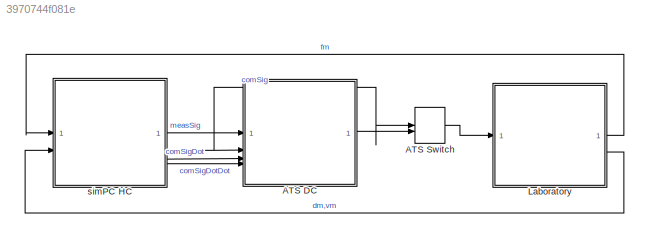
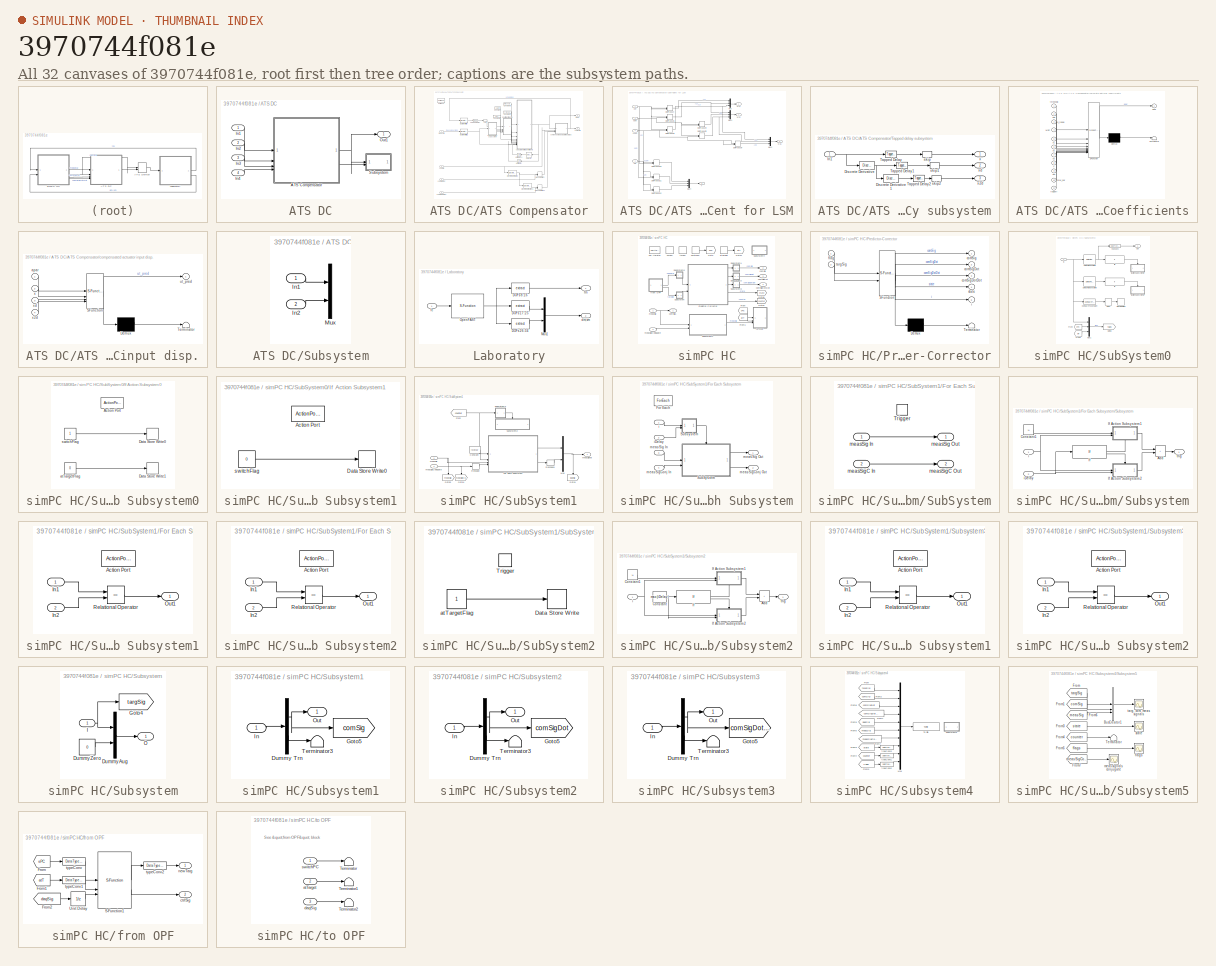
[diagram: thumbnail index - all 32 canvases of the model, root first then tree order]
MODEL slx_3970744f081e
KIND model
CONFIG AbsTol = auto
CONFIG EnableMultiTasking = off
CONFIG FixedStep = controlPeriod
CONFIG InitFcn = clear('all');\ninitializeSimulation;
CONFIG MaxStep = auto
CONFIG MinStep = auto
CONFIG PreLoadFcn = initializeSimulation;
CONFIG RelTol = 1e-3
CONFIG SampleTimeConstraint = Unconstrained
CONFIG SolverName = FixedStepDiscrete
CONFIG StartTime = 0.0
CONFIG StopTime = inf
BLOCK [SubSystem] ATS DC
BLOCK [SubSystem] ATS DC/ATS Compensator
BLOCK [DiscreteTransferFcn] ATS DC/ATS Compensator/Butterworth filter
  Denominator = Zden
  InputPortMap = u0
  Numerator = Znum
BLOCK [DiscreteTransferFcn] ATS DC/ATS Compensator/Butterworth filter1
  Denominator = Zden
  InputPortMap = u0
  Numerator = Znum
BLOCK [SubSystem] ATS DC/ATS Compensator/Coefficient for LSM
BLOCK [DotProduct] ATS DC/ATS Compensator/Coefficient for LSM/Dot Product
  OutDataTypeStr = Inherit: Inherit via internal rule
BLOCK [DotProduct] ATS DC/ATS Compensator/Coefficient for LSM/Dot Product1
  OutDataTypeStr = Inherit: Inherit via internal rule
BLOCK [DotProduct] ATS DC/ATS Compensator/Coefficient for LSM/Dot Product10
  OutDataTypeStr = Inherit: Inherit via internal rule
BLOCK [DotProduct] ATS DC/ATS Compensator/Coefficient for LSM/Dot Product11
  OutDataTypeStr = Inherit: Inherit via internal rule
BLOCK [DotProduct] ATS DC/ATS Compensator/Coefficient for LSM/Dot Product12
  OutDataTypeStr = Inherit: Inherit via internal rule
BLOCK [DotProduct] ATS DC/ATS Compensator/Coefficient for LSM/Dot Product2
  OutDataTypeStr = Inherit: Inherit via internal rule
BLOCK [DotProduct] ATS DC/ATS Compensator/Coefficient for LSM/Dot Product4
  OutDataTypeStr = Inherit: Inherit via internal rule
BLOCK [DotProduct] ATS DC/ATS Compensator/Coefficient for LSM/Dot Product5
  OutDataTypeStr = Inherit: Inherit via internal rule
BLOCK [DotProduct] ATS DC/ATS Compensator/Coefficient for LSM/Dot Product7
  OutDataTypeStr = Inherit: Inherit via internal rule
BLOCK [Mux] ATS DC/ATS Compensator/Coefficient for LSM/Mux
  DisplayOption = bar
  Inputs = 3
BLOCK [Mux] ATS DC/ATS Compensator/Coefficient for LSM/Mux1
  DisplayOption = bar
  Inputs = 3
BLOCK [Mux] ATS DC/ATS Compensator/Coefficient for LSM/Mux2
  DisplayOption = bar
  Inputs = 3
BLOCK [Mux] ATS DC/ATS Compensator/Coefficient for LSM/Mux4
  DisplayOption = bar
  Inputs = 3
BLOCK [Outport] ATS DC/ATS Compensator/Coefficient for LSM/X(1,:)
  VectorParamsAs1DForOutWhenUnconnected = off
BLOCK [Outport] ATS DC/ATS Compensator/Coefficient for LSM/X(2,:)
  Port = 2
  VectorParamsAs1DForOutWhenUnconnected = off
BLOCK [Outport] ATS DC/ATS Compensator/Coefficient for LSM/X(3,:)
  Port = 3
  VectorParamsAs1DForOutWhenUnconnected = off
BLOCK [Outport] ATS DC/ATS Compensator/Coefficient for LSM/Y
  Port = 4
  VectorParamsAs1DForOutWhenUnconnected = off
BLOCK [Inport] ATS DC/ATS Compensator/Coefficient for LSM/um
BLOCK [Inport] ATS DC/ATS Compensator/Coefficient for LSM/x2dm
  Port = 4
BLOCK [Inport] ATS DC/ATS Compensator/Coefficient for LSM/xdm
  Port = 3
BLOCK [Inport] ATS DC/ATS Compensator/Coefficient for LSM/xm
  Port = 2
BLOCK [Constant] ATS DC/ATS Compensator/Constant1
  Value = param
BLOCK [Constant] ATS DC/ATS Compensator/Constant2
  Value = P_range
BLOCK [Constant] ATS DC/ATS Compensator/Constant3
  Value = threshold
BLOCK [Constant] ATS DC/ATS Compensator/Constant4
  Value = MRC
BLOCK [Reference] ATS DC/ATS Compensator/Discrete Derivative  REF=simulink/Discrete/Discrete Derivative
  SourceBlock = simulink/Discrete/Discrete Derivative
  SourceType = Discrete Derivative
BLOCK [Reference] ATS DC/ATS Compensator/Discrete Derivative1  REF=simulink/Discrete/Discrete Derivative
  SourceBlock = simulink/Discrete/Discrete Derivative
  SourceType = Discrete Derivative
BLOCK [ForEach] ATS DC/ATS Compensator/For Each
  DisableCoverage = on
  IterateSubsysMaskParameter = on,on
  SubsysMaskParameterIterationDimension = 2,2
BLOCK [ManualSwitch] ATS DC/ATS Compensator/Manual Switch
  CurrentSetting = 0
BLOCK [ManualSwitch] ATS DC/ATS Compensator/Manual Switch1
  CurrentSetting = 0
BLOCK [Selector] ATS DC/ATS Compensator/Selector
  IndexOptions = Index vector (dialog)
  Indices = 4
  InputPortWidth = 4
  OutputSizes = 1
BLOCK [Reference] ATS DC/ATS Compensator/Tapped Delay  REF=simulink/Discrete/Tapped Delay
  SourceBlock = simulink/Discrete/Tapped Delay
  SourceType = Tapped Delay Line
BLOCK [SubSystem] ATS DC/ATS Compensator/Tapped delay subsystem
BLOCK [Reference] ATS DC/ATS Compensator/Tapped delay subsystem/Discrete Derivative  REF=simulink/Discrete/Discrete Derivative
  SourceBlock = simulink/Discrete/Discrete Derivative
  SourceType = Discrete Derivative
BLOCK [Reference] ATS DC/ATS Compensator/Tapped delay subsystem/Discrete Derivative1  REF=simulink/Discrete/Discrete Derivative
  SourceBlock = simulink/Discrete/Discrete Derivative
  SourceType = Discrete Derivative
BLOCK [Inport] ATS DC/ATS Compensator/Tapped delay subsystem/In1
BLOCK [Reference] ATS DC/ATS Compensator/Tapped delay subsystem/Tapped Delay  REF=simulink/Discrete/Tapped Delay
  SourceBlock = simulink/Discrete/Tapped Delay
  SourceType = Tapped Delay Line
BLOCK [Reference] ATS DC/ATS Compensator/Tapped delay subsystem/Tapped Delay1  REF=simulink/Discrete/Tapped Delay
  SourceBlock = simulink/Discrete/Tapped Delay
  SourceType = Tapped Delay Line
BLOCK [Reference] ATS DC/ATS Compensator/Tapped delay subsystem/Tapped Delay2  REF=simulink/Discrete/Tapped Delay
  SourceBlock = simulink/Discrete/Tapped Delay
  SourceType = Tapped Delay Line
BLOCK [Selector] ATS DC/ATS Compensator/Tapped delay subsystem/skip
  IndexOptions = Index vector (dialog)
  Indices = [1:SN:Nl]
  InputPortWidth = Nl
  OutputSizes = 1
BLOCK [Selector] ATS DC/ATS Compensator/Tapped delay subsystem/skip1
  IndexOptions = Index vector (dialog)
  Indices = [1:SN:Nl]
  InputPortWidth = Nl
  OutputSizes = 1
BLOCK [Selector] ATS DC/ATS Compensator/Tapped delay subsystem/skip2
  IndexOptions = Index vector (dialog)
  Indices = [1:SN:Nl]
  InputPortWidth = Nl
  OutputSizes = 1
BLOCK [Outport] ATS DC/ATS Compensator/Tapped delay subsystem/x
  VectorParamsAs1DForOutWhenUnconnected = off
BLOCK [Outport] ATS DC/ATS Compensator/Tapped delay subsystem/x2d
  Port = 3
  VectorParamsAs1DForOutWhenUnconnected = off
BLOCK [Outport] ATS DC/ATS Compensator/Tapped delay subsystem/xd
  Port = 2
  VectorParamsAs1DForOutWhenUnconnected = off
BLOCK [UnitDelay] ATS DC/ATS Compensator/Unit Delay
  HasFrameUpgradeWarning = on
  SampleTime = -1
BLOCK [UnitDelay] ATS DC/ATS Compensator/Unit Delay1
  HasFrameUpgradeWarning = on
  SampleTime = -1
BLOCK [Outport] ATS DC/ATS Compensator/apar
  ConcatenationDimension = 1
  Port = 2
  VectorParamsAs1DForOutWhenUnconnected = off
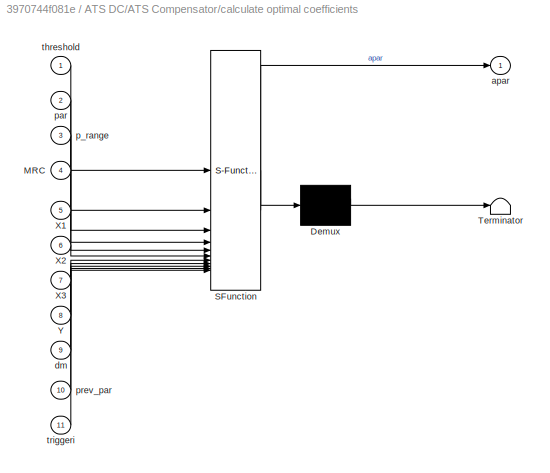
BLOCK [SubSystem] ATS DC/ATS Compensator/calculate optimal coefficients
  ErrorFcn = Stateflow.Translate.translate
  PermitHierarchicalResolution = ExplicitOnly
  SFBlockType = MATLAB Function
  TreatAsAtomicUnit = on
BLOCK [Demux] ATS DC/ATS Compensator/calculate optimal coefficients/ Demux 
  Outputs = 1
BLOCK [S-Function] ATS DC/ATS Compensator/calculate optimal coefficients/ SFunction 
  EnableBusSupport = off
  FunctionName = sf_sfun
  PortCounts = [11 2]
  SFcnIsStateOwnerBlock = off
  SFunctionDeploymentMode = off
  Tag = Stateflow S-Function 14
BLOCK [Terminator] ATS DC/ATS Compensator/calculate optimal coefficients/ Terminator 
BLOCK [Inport] ATS DC/ATS Compensator/calculate optimal coefficients/MRC
  Port = 4
BLOCK [Inport] ATS DC/ATS Compensator/calculate optimal coefficients/X1
  Port = 5
BLOCK [Inport] ATS DC/ATS Compensator/calculate optimal coefficients/X2
  Port = 6
BLOCK [Inport] ATS DC/ATS Compensator/calculate optimal coefficients/X3
  Port = 7
BLOCK [Inport] ATS DC/ATS Compensator/calculate optimal coefficients/Y
  Port = 8
BLOCK [Outport] ATS DC/ATS Compensator/calculate optimal coefficients/apar
  VectorParamsAs1DForOutWhenUnconnected = off
BLOCK [Inport] ATS DC/ATS Compensator/calculate optimal coefficients/dm
  Port = 9
BLOCK [Inport] ATS DC/ATS Compensator/calculate optimal coefficients/p_range
  Port = 3
BLOCK [Inport] ATS DC/ATS Compensator/calculate optimal coefficients/par
  Port = 2
BLOCK [Inport] ATS DC/ATS Compensator/calculate optimal coefficients/prev_par
  Port = 10
BLOCK [Inport] ATS DC/ATS Compensator/calculate optimal coefficients/threshold
BLOCK [Inport] ATS DC/ATS Compensator/calculate optimal coefficients/triggeri
  Port = 11
BLOCK [Inport] ATS DC/ATS Compensator/comSig
  Partition = on
  PartitionDimension = 1
  PartitionOffset = 0
  PartitionWidth = 1
  Port = 2
BLOCK [Inport] ATS DC/ATS Compensator/comSigDot
  Partition = on
  PartitionDimension = 1
  PartitionOffset = 0
  PartitionWidth = 1
  Port = 3
BLOCK [Inport] ATS DC/ATS Compensator/comSigDotDot
  Partition = on
  PartitionDimension = 1
  PartitionOffset = 0
  PartitionWidth = 1
  Port = 4
BLOCK [Outport] ATS DC/ATS Compensator/compSig
  ConcatenationDimension = 1
  VectorParamsAs1DForOutWhenUnconnected = off
BLOCK [SubSystem] ATS DC/ATS Compensator/compensated actuator input disp.
  ErrorFcn = Stateflow.Translate.translate
  PermitHierarchicalResolution = ExplicitOnly
  SFBlockType = MATLAB Function
  TreatAsAtomicUnit = on
BLOCK [Demux] ATS DC/ATS Compensator/compensated actuator input disp./ Demux 
  Outputs = 1
BLOCK [S-Function] ATS DC/ATS Compensator/compensated actuator input disp./ SFunction 
  EnableBusSupport = off
  FunctionName = sf_sfun
  PortCounts = [4 2]
  SFcnIsStateOwnerBlock = off
  SFunctionDeploymentMode = off
  Tag = Stateflow S-Function 15
BLOCK [Terminator] ATS DC/ATS Compensator/compensated actuator input disp./ Terminator 
BLOCK [Inport] ATS DC/ATS Compensator/compensated actuator input disp./apar
BLOCK [Outport] ATS DC/ATS Compensator/compensated actuator input disp./ut_pred
  VectorParamsAs1DForOutWhenUnconnected = off
BLOCK [Inport] ATS DC/ATS Compensator/compensated actuator input disp./x
  Port = 2
BLOCK [Inport] ATS DC/ATS Compensator/compensated actuator input disp./x2d
  Port = 4
BLOCK [Inport] ATS DC/ATS Compensator/compensated actuator input disp./xd
  Port = 3
BLOCK [Inport] ATS DC/ATS Compensator/measSig
  Partition = on
  PartitionDimension = 1
  PartitionOffset = 0
  PartitionWidth = 1
BLOCK [Selector] ATS DC/ATS Compensator/skip
  IndexOptions = Index vector (dialog)
  Indices = [1:SN:Nl]
  InputPortWidth = Nl
  OutputSizes = 1
BLOCK [Inport] ATS DC/In1
BLOCK [Inport] ATS DC/In2
  Port = 2
BLOCK [Inport] ATS DC/In3
  Port = 3
BLOCK [Inport] ATS DC/In4
  Port = 4
BLOCK [Outport] ATS DC/Out1
  VectorParamsAs1DForOutWhenUnconnected = off
BLOCK [SubSystem] ATS DC/Subsystem
BLOCK [Inport] ATS DC/Subsystem/In1
BLOCK [Inport] ATS DC/Subsystem/In2
  Port = 2
BLOCK [Mux] ATS DC/Subsystem/Mux
  DisplayOption = bar
  Inputs = 2
BLOCK [ManualSwitch] ATS Switch
BLOCK [SubSystem] Laboratory
BLOCK [Reference] Laboratory/DOFs 17:25  REF=HybridSimLib/Signal
Routing/extract
  SourceBlock = HybridSimLib/Signal\nRouting/extract
  SourceProductName = Hybrid Simulation
  SourceType = from Actuators
BLOCK [Reference] Laboratory/DOFs 26:34  REF=HybridSimLib/Signal
Routing/extract
  SourceBlock = HybridSimLib/Signal\nRouting/extract
  SourceProductName = Hybrid Simulation
  SourceType = from Actuators
BLOCK [Reference] Laboratory/DOFs 8:16  REF=HybridSimLib/Signal
Routing/extract
  SourceBlock = HybridSimLib/Signal\nRouting/extract
  SourceProductName = Hybrid Simulation
  SourceType = from Actuators
BLOCK [Mux] Laboratory/Mux1
  DisplayOption = bar
  Inputs = 2
BLOCK [S-Function] Laboratory/OpenFAST
  EnableBusSupport = off
  FunctionName = FAST_SFunc
  Parameters = FAST_InputFileName, TMax, 0
  SFcnIsStateOwnerBlock = off
  SFunctionDeploymentMode = off
BLOCK [Outport] Laboratory/dm,vm
  Port = 2
BLOCK [Inport] Laboratory/fc
BLOCK [Outport] Laboratory/fm
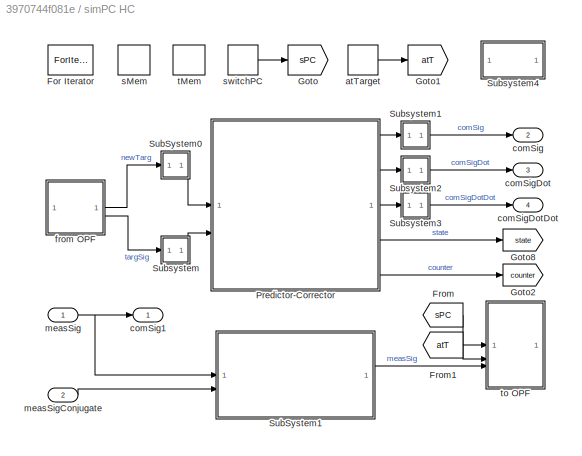
BLOCK [SubSystem] simPC HC
BLOCK [ForIterator] simPC HC/For Iterator
  IterationLimit = upFact
  ShowIterationPort = off
BLOCK [From] simPC HC/From
  GotoTag = sPC
  IconDisplay = Signal name
  TagVisibility = global
BLOCK [From] simPC HC/From1
  GotoTag = atT
  IconDisplay = Signal name
  TagVisibility = global
BLOCK [Goto] simPC HC/Goto
  GotoTag = sPC
  TagVisibility = global
BLOCK [Goto] simPC HC/Goto1
  GotoTag = atT
  TagVisibility = global
BLOCK [Goto] simPC HC/Goto2
  GotoTag = counter
  TagVisibility = global
BLOCK [Goto] simPC HC/Goto8
  GotoTag = state
  TagVisibility = global
BLOCK [SubSystem] simPC HC/Predictor-Corrector
  ErrorFcn = Stateflow.Translate.translate
  PermitHierarchicalResolution = ExplicitOnly
  SFBlockType = Chart
  TreatAsAtomicUnit = on
BLOCK [Demux] simPC HC/Predictor-Corrector/ Demux 
  Outputs = 1
BLOCK [S-Function] simPC HC/Predictor-Corrector/ SFunction 
  EnableBusSupport = off
  FunctionName = sf_sfun
  Parameters = N,dtCon,dtInt,dtSim,nDOF
  PortCounts = [2 6]
  SFcnIsStateOwnerBlock = off
  SFunctionDeploymentMode = off
  Tag = Stateflow S-Function 5
BLOCK [Terminator] simPC HC/Predictor-Corrector/ Terminator 
BLOCK [Outport] simPC HC/Predictor-Corrector/comSig
  VectorParamsAs1DForOutWhenUnconnected = off
BLOCK [Outport] simPC HC/Predictor-Corrector/comSigDot
  Port = 2
  VectorParamsAs1DForOutWhenUnconnected = off
BLOCK [Outport] simPC HC/Predictor-Corrector/comSigDotDot
  Port = 3
  VectorParamsAs1DForOutWhenUnconnected = off
BLOCK [Inport] simPC HC/Predictor-Corrector/flag
BLOCK [Outport] simPC HC/Predictor-Corrector/i
  Port = 5
  VectorParamsAs1DForOutWhenUnconnected = off
BLOCK [Outport] simPC HC/Predictor-Corrector/state
  Port = 4
  VectorParamsAs1DForOutWhenUnconnected = off
BLOCK [Inport] simPC HC/Predictor-Corrector/targSig
  Port = 2
BLOCK [SubSystem] simPC HC/SubSystem0
BLOCK [Reference] simPC HC/SubSystem0/Compare To Constant  REF=simulink/Logic and Bit
Operations/Compare
To Constant
  SourceBlock = simulink/Logic and Bit\nOperations/Compare\nTo Constant
  SourceType = Compare To Constant
BLOCK [Delay] simPC HC/SubSystem0/Delay
  DelayLength = 10
  InputPortMap = u0
BLOCK [Reference] simPC HC/SubSystem0/Detect Fall Nonpositive  REF=simulink/Logic and Bit
Operations/Detect Fall
Nonpositive
  SourceBlock = simulink/Logic and Bit\nOperations/Detect Fall\nNonpositive
  SourceType = Detect Fall Nonpositive
BLOCK [Reference] simPC HC/SubSystem0/Detect Rise Positive  REF=simulink/Logic and Bit
Operations/Detect Rise
Positive
  SourceBlock = simulink/Logic and Bit\nOperations/Detect Rise\nPositive
  SourceType = Detect Rise Positive
BLOCK [From] simPC HC/SubSystem0/From
  GotoTag = sPC
  IconDisplay = Signal name
  TagVisibility = global
BLOCK [From] simPC HC/SubSystem0/From1
  GotoTag = atT
  IconDisplay = Signal name
  TagVisibility = global
BLOCK [Goto] simPC HC/SubSystem0/Goto8
  GotoTag = flags
  TagVisibility = global
BLOCK [SubSystem] simPC HC/SubSystem0/If Action Subsystem0
  TreatAsAtomicUnit = on
BLOCK [ActionPort] simPC HC/SubSystem0/If Action Subsystem0/Action Port
  ActionPortLabel = if(u1 == 1)
  PropagateVarSize = During execution
BLOCK [DataStoreWrite] simPC HC/SubSystem0/If Action Subsystem0/Data Store Write0
  DataStoreName = sFlag
  IndexOptions = Index vector (dialog)
  Indices = 1
  OutputSizes = 1
BLOCK [DataStoreWrite] simPC HC/SubSystem0/If Action Subsystem0/Data Store Write1
  DataStoreName = tFlag
  IndexOptions = Index vector (dialog)
  Indices = 1
  OutputSizes = 1
BLOCK [Constant] simPC HC/SubSystem0/If Action Subsystem0/atTargetFlag
  OutDataTypeStr = int32
  SampleTime = -1
  Value = 0
BLOCK [Constant] simPC HC/SubSystem0/If Action Subsystem0/switchFlag
  OutDataTypeStr = int32
  SampleTime = -1
BLOCK [SubSystem] simPC HC/SubSystem0/If Action Subsystem1
  TreatAsAtomicUnit = on
BLOCK [ActionPort] simPC HC/SubSystem0/If Action Subsystem1/Action Port
  ActionPortLabel = if(u1 == 1)
  PropagateVarSize = During execution
BLOCK [DataStoreWrite] simPC HC/SubSystem0/If Action Subsystem1/Data Store Write0
  DataStoreName = sFlag
  IndexOptions = Index vector (dialog)
  Indices = 1
  OutputSizes = 1
BLOCK [Constant] simPC HC/SubSystem0/If Action Subsystem1/switchFlag
  OutDataTypeStr = int32
  SampleTime = -1
  Value = 0
BLOCK [If] simPC HC/SubSystem0/If0
  IfExpression = u1 == 1
  ShowElse = off
BLOCK [If] simPC HC/SubSystem0/If1
  IfExpression = u1 == 1
  ShowElse = off
BLOCK [Inport] simPC HC/SubSystem0/In
BLOCK [Mux] simPC HC/SubSystem0/Mux1
  DisplayOption = bar
  Inputs = 3
  NameLocation = top
BLOCK [Outport] simPC HC/SubSystem0/Out
  VectorParamsAs1DForOutWhenUnconnected = off
BLOCK [Stop] simPC HC/SubSystem0/Stop Simulation
BLOCK [DataTypeConversion] simPC HC/SubSystem0/typeConv
  OutDataTypeStr = int32
BLOCK [SubSystem] simPC HC/SubSystem1
BLOCK [Constant] simPC HC/SubSystem1/Constant
  Value = iDelay
BLOCK [SubSystem] simPC HC/SubSystem1/For Each Subsystem
  TreatAsAtomicUnit = on
BLOCK [ForEach] simPC HC/SubSystem1/For Each Subsystem/For Each
  DisableCoverage = on
BLOCK [SubSystem] simPC HC/SubSystem1/For Each Subsystem/SubSystem
  TreatAsAtomicUnit = on
BLOCK [TriggerPort] simPC HC/SubSystem1/For Each Subsystem/SubSystem/Trigger
  StatesWhenEnabling = held
  VariantControl = (inherit)
BLOCK [Inport] simPC HC/SubSystem1/For Each Subsystem/SubSystem/measSig In
BLOCK [Outport] simPC HC/SubSystem1/For Each Subsystem/SubSystem/measSig Out
  InitialOutput = [0]
  VectorParamsAs1DForOutWhenUnconnected = off
BLOCK [Inport] simPC HC/SubSystem1/For Each Subsystem/SubSystem/measSigC In
  Port = 2
BLOCK [Outport] simPC HC/SubSystem1/For Each Subsystem/SubSystem/measSigC Out
  InitialOutput = [0]
  Port = 2
  VectorParamsAs1DForOutWhenUnconnected = off
BLOCK [SubSystem] simPC HC/SubSystem1/For Each Subsystem/Subsystem
BLOCK [Sum] simPC HC/SubSystem1/For Each Subsystem/Subsystem/Add
  IconShape = rectangular
BLOCK [Constant] simPC HC/SubSystem1/For Each Subsystem/Subsystem/Constant1
  Value = N
BLOCK [If] simPC HC/SubSystem1/For Each Subsystem/Subsystem/If
  IfExpression = u1 == 0
BLOCK [SubSystem] simPC HC/SubSystem1/For Each Subsystem/Subsystem/If Action Subsystem1
  NameLocation = top
  TreatAsAtomicUnit = on
BLOCK [ActionPort] simPC HC/SubSystem1/For Each Subsystem/Subsystem/If Action Subsystem1/Action Port
  ActionPortLabel = if(u1 == 0)
BLOCK [Inport] simPC HC/SubSystem1/For Each Subsystem/Subsystem/If Action Subsystem1/In1
BLOCK [Inport] simPC HC/SubSystem1/For Each Subsystem/Subsystem/If Action Subsystem1/In2
  Port = 2
BLOCK [Outport] simPC HC/SubSystem1/For Each Subsystem/Subsystem/If Action Subsystem1/Out1
  InitialOutput = 0
  VectorParamsAs1DForOutWhenUnconnected = off
BLOCK [RelationalOperator] simPC HC/SubSystem1/For Each Subsystem/Subsystem/If Action Subsystem1/Relational Operator
  InputSameDT = off
  Operator = ==
  OutDataTypeStr = boolean
BLOCK [SubSystem] simPC HC/SubSystem1/For Each Subsystem/Subsystem/If Action Subsystem2
  TreatAsAtomicUnit = on
BLOCK [ActionPort] simPC HC/SubSystem1/For Each Subsystem/Subsystem/If Action Subsystem2/Action Port
  ActionPortLabel = else
BLOCK [Inport] simPC HC/SubSystem1/For Each Subsystem/Subsystem/If Action Subsystem2/In1
BLOCK [Inport] simPC HC/SubSystem1/For Each Subsystem/Subsystem/If Action Subsystem2/In2
  Port = 2
BLOCK [Outport] simPC HC/SubSystem1/For Each Subsystem/Subsystem/If Action Subsystem2/Out1
  InitialOutput = 0
  VectorParamsAs1DForOutWhenUnconnected = off
BLOCK [RelationalOperator] simPC HC/SubSystem1/For Each Subsystem/Subsystem/If Action Subsystem2/Relational Operator
  InputSameDT = off
  Operator = ==
  OutDataTypeStr = boolean
BLOCK [Inport] simPC HC/SubSystem1/For Each Subsystem/Subsystem/i
BLOCK [Inport] simPC HC/SubSystem1/For Each Subsystem/Subsystem/iDelay
  Port = 2
BLOCK [Outport] simPC HC/SubSystem1/For Each Subsystem/Subsystem/trig
  VectorParamsAs1DForOutWhenUnconnected = off
BLOCK [Inport] simPC HC/SubSystem1/For Each Subsystem/i
BLOCK [Inport] simPC HC/SubSystem1/For Each Subsystem/iDelay
  Partition = on
  PartitionDimension = 1
  PartitionOffset = 0
  PartitionWidth = 1
  Port = 2
BLOCK [Inport] simPC HC/SubSystem1/For Each Subsystem/measSig In
  Partition = on
  PartitionDimension = 1
  PartitionOffset = 0
  PartitionWidth = 1
  Port = 3
BLOCK [Outport] simPC HC/SubSystem1/For Each Subsystem/measSig Out
  ConcatenationDimension = 1
  VectorParamsAs1DForOutWhenUnconnected = off
BLOCK [Inport] simPC HC/SubSystem1/For Each Subsystem/measSigConj In
  Partition = on
  PartitionDimension = 1
  PartitionOffset = 0
  PartitionWidth = 1
  Port = 4
BLOCK [Outport] simPC HC/SubSystem1/For Each Subsystem/measSigConj Out
  ConcatenationDimension = 1
  Port = 2
  VectorParamsAs1DForOutWhenUnconnected = off
BLOCK [From] simPC HC/SubSystem1/From
  GotoTag = counter
  TagVisibility = global
BLOCK [Goto] simPC HC/SubSystem1/Goto1
  GotoTag = daqSig
  NameLocation = right
  TagVisibility = global
BLOCK [Goto] simPC HC/SubSystem1/Goto4
  GotoTag = measSigConj
  NameLocation = right
  TagVisibility = global
BLOCK [Goto] simPC HC/SubSystem1/Goto5
  GotoTag = measSig
  NameLocation = right
  TagVisibility = global
BLOCK [Mux] simPC HC/SubSystem1/Mux
  DisplayOption = bar
  Inputs = 2
BLOCK [Reshape] simPC HC/SubSystem1/Reshape
  OutputDimensionality = Customize
  OutputDimensions = [nDOF,2]
BLOCK [Reshape] simPC HC/SubSystem1/Reshape1
  OutputDimensions = [nDOF,2]
BLOCK [SubSystem] simPC HC/SubSystem1/SubSystem2
  TreatAsAtomicUnit = on
BLOCK [DataStoreWrite] simPC HC/SubSystem1/SubSystem2/Data Store Write
  DataStoreName = tFlag
  IndexOptions = Index vector (dialog)
  Indices = 1
  OutputSizes = 1
BLOCK [TriggerPort] simPC HC/SubSystem1/SubSystem2/Trigger
  StatesWhenEnabling = held
  VariantControl = (inherit)
BLOCK [Constant] simPC HC/SubSystem1/SubSystem2/atTargetFlag
  OutDataTypeStr = int32
  SampleTime = -1
BLOCK [SubSystem] simPC HC/SubSystem1/Subsystem2
BLOCK [Sum] simPC HC/SubSystem1/Subsystem2/Add
  IconShape = rectangular
BLOCK [Constant] simPC HC/SubSystem1/Subsystem2/Constant
  Value = max(iDelay)
BLOCK [Constant] simPC HC/SubSystem1/Subsystem2/Constant1
  Value = N
BLOCK [If] simPC HC/SubSystem1/Subsystem2/If
  IfExpression = u1 == 0
BLOCK [SubSystem] simPC HC/SubSystem1/Subsystem2/If Action Subsystem1
  NameLocation = top
  TreatAsAtomicUnit = on
BLOCK [ActionPort] simPC HC/SubSystem1/Subsystem2/If Action Subsystem1/Action Port
  ActionPortLabel = if(u1 == 0)
BLOCK [Inport] simPC HC/SubSystem1/Subsystem2/If Action Subsystem1/In1
BLOCK [Inport] simPC HC/SubSystem1/Subsystem2/If Action Subsystem1/In2
  Port = 2
BLOCK [Outport] simPC HC/SubSystem1/Subsystem2/If Action Subsystem1/Out1
  InitialOutput = 0
  VectorParamsAs1DForOutWhenUnconnected = off
BLOCK [RelationalOperator] simPC HC/SubSystem1/Subsystem2/If Action Subsystem1/Relational Operator
  InputSameDT = off
  Operator = ==
  OutDataTypeStr = boolean
BLOCK [SubSystem] simPC HC/SubSystem1/Subsystem2/If Action Subsystem2
  TreatAsAtomicUnit = on
BLOCK [ActionPort] simPC HC/SubSystem1/Subsystem2/If Action Subsystem2/Action Port
  ActionPortLabel = else
BLOCK [Inport] simPC HC/SubSystem1/Subsystem2/If Action Subsystem2/In1
BLOCK [Inport] simPC HC/SubSystem1/Subsystem2/If Action Subsystem2/In2
  Port = 2
BLOCK [Outport] simPC HC/SubSystem1/Subsystem2/If Action Subsystem2/Out1
  InitialOutput = 0
  VectorParamsAs1DForOutWhenUnconnected = off
BLOCK [RelationalOperator] simPC HC/SubSystem1/Subsystem2/If Action Subsystem2/Relational Operator
  InputSameDT = off
  Operator = ==
  OutDataTypeStr = boolean
BLOCK [Inport] simPC HC/SubSystem1/Subsystem2/i
BLOCK [Outport] simPC HC/SubSystem1/Subsystem2/trig
  VectorParamsAs1DForOutWhenUnconnected = off
BLOCK [Inport] simPC HC/SubSystem1/measSig
BLOCK [Inport] simPC HC/SubSystem1/measSigConjugate
  Port = 2
BLOCK [Outport] simPC HC/SubSystem1/measSignal
  VectorParamsAs1DForOutWhenUnconnected = off
BLOCK [SubSystem] simPC HC/Subsystem
BLOCK [Mux] simPC HC/Subsystem/Dummy Aug
  DisplayOption = bar
  Inputs = [nDOF 1]
BLOCK [Constant] simPC HC/Subsystem/Dummy Zero
  OutDataTypeStr = double
  SampleTime = -1
  Value = 0
BLOCK [Goto] simPC HC/Subsystem/Goto4
  GotoTag = targSig
  TagVisibility = global
BLOCK [Inport] simPC HC/Subsystem/I
  PortDimensions = nDOF
BLOCK [Outport] simPC HC/Subsystem/O
  PortDimensions = nDOF+1
  VectorParamsAs1DForOutWhenUnconnected = off
BLOCK [SubSystem] simPC HC/Subsystem1
BLOCK [Demux] simPC HC/Subsystem1/Dummy Trn
  Outputs = [nDOF 1]
BLOCK [Goto] simPC HC/Subsystem1/Goto5
  GotoTag = comSig
  TagVisibility = global
BLOCK [Inport] simPC HC/Subsystem1/In
  PortDimensions = nDOF+1
BLOCK [Outport] simPC HC/Subsystem1/Out
  PortDimensions = nDOF
  VectorParamsAs1DForOutWhenUnconnected = off
BLOCK [Terminator] simPC HC/Subsystem1/Terminator3
BLOCK [SubSystem] simPC HC/Subsystem2
BLOCK [Demux] simPC HC/Subsystem2/Dummy Trn
  Outputs = [nDOF 1]
BLOCK [Goto] simPC HC/Subsystem2/Goto5
  GotoTag = comSigDot
  TagVisibility = global
BLOCK [Inport] simPC HC/Subsystem2/In
  PortDimensions = nDOF+1
BLOCK [Outport] simPC HC/Subsystem2/Out
  PortDimensions = nDOF
  VectorParamsAs1DForOutWhenUnconnected = off
BLOCK [Terminator] simPC HC/Subsystem2/Terminator3
BLOCK [SubSystem] simPC HC/Subsystem3
BLOCK [Demux] simPC HC/Subsystem3/Dummy Trn
  Outputs = [nDOF 1]
BLOCK [Goto] simPC HC/Subsystem3/Goto5
  GotoTag = comSigDotDot
  TagVisibility = global
BLOCK [Inport] simPC HC/Subsystem3/In
  PortDimensions = nDOF+1
BLOCK [Outport] simPC HC/Subsystem3/Out
  PortDimensions = nDOF
  VectorParamsAs1DForOutWhenUnconnected = off
BLOCK [Terminator] simPC HC/Subsystem3/Terminator3
BLOCK [SubSystem] simPC HC/Subsystem4
BLOCK [From] simPC HC/Subsystem4/From
  GotoTag = targSig
  TagVisibility = global
BLOCK [From] simPC HC/Subsystem4/From1
  GotoTag = comSigDotDot
  TagVisibility = global
BLOCK [From] simPC HC/Subsystem4/From2
  GotoTag = comSig
  TagVisibility = global
BLOCK [From] simPC HC/Subsystem4/From3
  GotoTag = state
  TagVisibility = global
BLOCK [From] simPC HC/Subsystem4/From4
  GotoTag = counter
  TagVisibility = global
BLOCK [From] simPC HC/Subsystem4/From5
  GotoTag = flags
  TagVisibility = global
BLOCK [From] simPC HC/Subsystem4/From6
  GotoTag = measSig
  TagVisibility = global
BLOCK [From] simPC HC/Subsystem4/From7
  GotoTag = measSigConj
  TagVisibility = global
BLOCK [From] simPC HC/Subsystem4/From8
  GotoTag = comSigDot
  TagVisibility = global
BLOCK [From] simPC HC/Subsystem4/From9
  GotoTag = daqSig
  TagVisibility = global
BLOCK [Mux] simPC HC/Subsystem4/Mux
  DisplayOption = bar
  Inputs = 10
BLOCK [SubSystem] simPC HC/Subsystem4/Subsystem5
BLOCK [BusCreator] simPC HC/Subsystem4/Subsystem5/BusCreator1
  InheritFromInputs = on
  Inputs = 3
BLOCK [From] simPC HC/Subsystem4/Subsystem5/From
  GotoTag = targSig
  TagVisibility = global
BLOCK [From] simPC HC/Subsystem4/Subsystem5/From1
  GotoTag = comSig
  TagVisibility = global
BLOCK [From] simPC HC/Subsystem4/Subsystem5/From3
  GotoTag = state
  TagVisibility = global
BLOCK [From] simPC HC/Subsystem4/Subsystem5/From4
  GotoTag = counter
  TagVisibility = global
BLOCK [From] simPC HC/Subsystem4/Subsystem5/From5
  GotoTag = flags
  TagVisibility = global
BLOCK [From] simPC HC/Subsystem4/Subsystem5/From6
  GotoTag = measSig
  TagVisibility = global
BLOCK [From] simPC HC/Subsystem4/Subsystem5/From7
  GotoTag = measSigConj
  TagVisibility = global
BLOCK [Terminator] simPC HC/Subsystem4/Subsystem5/Terminator
BLOCK [Scope] simPC HC/Subsystem4/Subsystem5/flags
  ContainerLayout = {"WindowBounds":[888,0,1039,617],"gridDimensions":{"w":1,"h":1},"tileCount":1,"tileCoverage":1,"columnWeights":1,"rowWeights":1,"tileOccupancy":{"children":[{"id":"/simPC HC/Subsystem4/Subsystem5/targ, com, meas signals"},{"id":"/simPC HC/Subsystem4/Subsystem5/meas signals conjugate"},{"id":"/simPC HC/Subsystem4/Subsystem5/state"},{"id":"/simPC HC/Subsystem4/Subsystem5/flags"}]}}  <repeated x4 — deduplicated; at blocks: flags, meas signals conjugate, state, targ, com, meas signals>
  Floating = off
  NumInputPorts = 1
  ScopeSpecificationString = Simulink.scopes.TimeScopeBlockCfg('CurrentConfiguration', extmgr.ConfigurationSet(extmgr.Configuration('Core','General UI',true,'DisplayFullSourceName',false,'ShowMainToolbar',true,'FigureColor',[0.129411764705882 0.129411764705882 0.129411764705882]),extmgr.Configuration('Sources','WiredSimulink',true,'DataLogging',false,'DataLoggingVariableName','ScopeData','DataLoggingLimitDataPoints',false,'Da...<+2596ch>
BLOCK [Scope] simPC HC/Subsystem4/Subsystem5/meas signals conjugate
  Floating = off
  NumInputPorts = 1
  ScopeSpecificationString = Simulink.scopes.TimeScopeBlockCfg('CurrentConfiguration', extmgr.ConfigurationSet(extmgr.Configuration('Core','General UI',true,'DisplayFullSourceName',false,'ShowMainToolbar',true,'FigureColor',[0.129411764705882 0.129411764705882 0.129411764705882]),extmgr.Configuration('Sources','WiredSimulink',true,'DataLogging',false,'DataLoggingVariableName','ScopeData1','DataLoggingLimitDataPoints',false,'D...<+4790ch>
BLOCK [Scope] simPC HC/Subsystem4/Subsystem5/state
  Floating = off
  NumInputPorts = 1
  ScopeSpecificationString = Simulink.scopes.TimeScopeBlockCfg('CurrentConfiguration', extmgr.ConfigurationSet(extmgr.Configuration('Core','General UI',true,'DisplayFullSourceName',false,'ShowMainToolbar',true,'FigureColor',[0.129411764705882 0.129411764705882 0.129411764705882]),extmgr.Configuration('Sources','WiredSimulink',true,'DataLogging',false,'DataLoggingVariableName','ScopeData1','DataLoggingLimitDataPoints',false,'D...<+2308ch>
BLOCK [Scope] simPC HC/Subsystem4/Subsystem5/targ, com, meas signals
  Floating = off
  NumInputPorts = 1
  ScopeSpecificationString = Simulink.scopes.TimeScopeBlockCfg('CurrentConfiguration', extmgr.ConfigurationSet(extmgr.Configuration('Core','General UI',true,'DisplayFullSourceName',false,'ShowMainToolbar',true,'FigureColor',[0.129411764705882 0.129411764705882 0.129411764705882]),extmgr.Configuration('Sources','WiredSimulink',true,'DataLogging',false,'DataLoggingVariableName','ScopeData3','DataLoggingLimitDataPoints',false,'D...<+6118ch>
BLOCK [ToFile] simPC HC/Subsystem4/To File
  Filename = Output/labResults.mat
  MatrixName = data
  SaveFormat = Timeseries
BLOCK [DataTypeConversion] simPC HC/Subsystem4/typeConv1
  OutDataTypeStr = double
BLOCK [DataTypeConversion] simPC HC/Subsystem4/typeConv2
  OutDataTypeStr = double
BLOCK [DataTypeConversion] simPC HC/Subsystem4/typeConv3
  OutDataTypeStr = double
BLOCK [DataStoreRead] simPC HC/atTarget
  DataStoreName = tFlag
  IndexOptions = Index vector (dialog)
  Indices = 1
  OutputSizes = 1
BLOCK [Outport] simPC HC/comSig
  Port = 2
  VectorParamsAs1DForOutWhenUnconnected = off
BLOCK [Outport] simPC HC/comSig1
  VectorParamsAs1DForOutWhenUnconnected = off
BLOCK [Outport] simPC HC/comSigDot
  Port = 3
  VectorParamsAs1DForOutWhenUnconnected = off
BLOCK [Outport] simPC HC/comSigDotDot
  Port = 4
  VectorParamsAs1DForOutWhenUnconnected = off
BLOCK [SubSystem] simPC HC/from OPF
BLOCK [From] simPC HC/from OPF/From
  GotoTag = sPC
  IconDisplay = Signal name
  TagVisibility = global
BLOCK [From] simPC HC/from OPF/From1
  GotoTag = atT
  IconDisplay = Signal name
  TagVisibility = global
BLOCK [From] simPC HC/from OPF/From2
  GotoTag = daqSig
  IconDisplay = Signal name
  TagVisibility = global
BLOCK [S-Function] simPC HC/from OPF/S-Function1
  EnableBusSupport = off
  FunctionName = SFun_OPF_TCPServer
  Parameters = 22222, numCtrlSignals, numDaqSignals, nbMode
  SFcnIsStateOwnerBlock = off
  SFunctionDeploymentMode = off
BLOCK [UnitDelay] simPC HC/from OPF/Unit Delay
  HasFrameUpgradeWarning = on
  SampleTime = -1
BLOCK [Outport] simPC HC/from OPF/ctrlSig
  Port = 2
  PortDimensions = nDOF
  VectorParamsAs1DForOutWhenUnconnected = off
BLOCK [Outport] simPC HC/from OPF/newTarg
  VectorParamsAs1DForOutWhenUnconnected = off
BLOCK [DataTypeConversion] simPC HC/from OPF/typeConv
  OutDataTypeStr = double
  RndMeth = Round
BLOCK [DataTypeConversion] simPC HC/from OPF/typeConv1
  OutDataTypeStr = double
  RndMeth = Round
BLOCK [DataTypeConversion] simPC HC/from OPF/typeConv2
  OutDataTypeStr = int32
  RndMeth = Round
BLOCK [Inport] simPC HC/measSig
BLOCK [Inport] simPC HC/measSigConjugate
  Port = 2
BLOCK [DataStoreMemory] simPC HC/sMem
  DataStoreName = sFlag
  OutDataTypeStr = int32
  ShowAdditionalParam = off
  SignalType = real
BLOCK [DataStoreRead] simPC HC/switchPC
  DataStoreName = sFlag
  IndexOptions = Index vector (dialog)
  Indices = 1
  OutputSizes = 1
BLOCK [DataStoreMemory] simPC HC/tMem
  DataStoreName = tFlag
  OutDataTypeStr = int32
  ShowAdditionalParam = off
  SignalType = real
BLOCK [SubSystem] simPC HC/to OPF
BLOCK [Terminator] simPC HC/to OPF/Terminator
BLOCK [Terminator] simPC HC/to OPF/Terminator1
BLOCK [Terminator] simPC HC/to OPF/Terminator2
BLOCK [Inport] simPC HC/to OPF/atTarget
  Port = 2
BLOCK [Inport] simPC HC/to OPF/daqSig
  Port = 3
BLOCK [Inport] simPC HC/to OPF/switchPC
ANNOTATION simPC HC/to OPF: See "from OPF" block
NET ATS DC/ATS Compensator/Butterworth filter1:1 -> ATS DC/ATS Compensator/Tapped delay subsystem:1, ATS DC/ATS Compensator/calculate optimal coefficients:9
LINE ATS DC/ATS Compensator/Butterworth filter:1 -> ATS DC/ATS Compensator/Tapped Delay:1
LINE ATS DC/ATS Compensator/Coefficient for LSM/Dot Product10:1 -> ATS DC/ATS Compensator/Coefficient for LSM/Mux4:1
LINE ATS DC/ATS Compensator/Coefficient for LSM/Dot Product11:1 -> ATS DC/ATS Compensator/Coefficient for LSM/Mux4:2
LINE ATS DC/ATS Compensator/Coefficient for LSM/Dot Product12:1 -> ATS DC/ATS Compensator/Coefficient for LSM/Mux4:3
NET ATS DC/ATS Compensator/Coefficient for LSM/Dot Product1:1 -> ATS DC/ATS Compensator/Coefficient for LSM/Mux1:1, ATS DC/ATS Compensator/Coefficient for LSM/Mux:2
NET ATS DC/ATS Compensator/Coefficient for LSM/Dot Product2:1 -> ATS DC/ATS Compensator/Coefficient for LSM/Mux2:1, ATS DC/ATS Compensator/Coefficient for LSM/Mux:3
LINE ATS DC/ATS Compensator/Coefficient for LSM/Dot Product4:1 -> ATS DC/ATS Compensator/Coefficient for LSM/Mux1:2
NET ATS DC/ATS Compensator/Coefficient for LSM/Dot Product5:1 -> ATS DC/ATS Compensator/Coefficient for LSM/Mux1:3, ATS DC/ATS Compensator/Coefficient for LSM/Mux2:2
LINE ATS DC/ATS Compensator/Coefficient for LSM/Dot Product7:1 -> ATS DC/ATS Compensator/Coefficient for LSM/Mux2:3
LINE ATS DC/ATS Compensator/Coefficient for LSM/Dot Product:1 -> ATS DC/ATS Compensator/Coefficient for LSM/Mux:1
LINE ATS DC/ATS Compensator/Coefficient for LSM/Mux1:1 -> ATS DC/ATS Compensator/Coefficient for LSM/X(2,:):1
LINE ATS DC/ATS Compensator/Coefficient for LSM/Mux2:1 -> ATS DC/ATS Compensator/Coefficient for LSM/X(3,:):1
LINE ATS DC/ATS Compensator/Coefficient for LSM/Mux4:1 -> ATS DC/ATS Compensator/Coefficient for LSM/Y:1
LINE ATS DC/ATS Compensator/Coefficient for LSM/Mux:1 -> ATS DC/ATS Compensator/Coefficient for LSM/X(1,:):1
NET ATS DC/ATS Compensator/Coefficient for LSM/um:1 -> ATS DC/ATS Compensator/Coefficient for LSM/Dot Product10:1, ATS DC/ATS Compensator/Coefficient for LSM/Dot Product11:1, ATS DC/ATS Compensator/Coefficient for LSM/Dot Product12:1
NET ATS DC/ATS Compensator/Coefficient for LSM/x2dm:1 -> ATS DC/ATS Compensator/Coefficient for LSM/Dot Product12:2, ATS DC/ATS Compensator/Coefficient for LSM/Dot Product2:2, ATS DC/ATS Compensator/Coefficient for LSM/Dot Product5:2, ATS DC/ATS Compensator/Coefficient for LSM/Dot Product7:1, ATS DC/ATS Compensator/Coefficient for LSM/Dot Product7:2
NET ATS DC/ATS Compensator/Coefficient for LSM/xdm:1 -> ATS DC/ATS Compensator/Coefficient for LSM/Dot Product11:2, ATS DC/ATS Compensator/Coefficient for LSM/Dot Product1:2, ATS DC/ATS Compensator/Coefficient for LSM/Dot Product4:1, ATS DC/ATS Compensator/Coefficient for LSM/Dot Product4:2, ATS DC/ATS Compensator/Coefficient for LSM/Dot Product5:1
NET ATS DC/ATS Compensator/Coefficient for LSM/xm:1 -> ATS DC/ATS Compensator/Coefficient for LSM/Dot Product10:2, ATS DC/ATS Compensator/Coefficient for LSM/Dot Product1:1, ATS DC/ATS Compensator/Coefficient for LSM/Dot Product2:1, ATS DC/ATS Compensator/Coefficient for LSM/Dot Product:1, ATS DC/ATS Compensator/Coefficient for LSM/Dot Product:2
LINE ATS DC/ATS Compensator/Coefficient for LSM:1 -> ATS DC/ATS Compensator/calculate optimal coefficients:5
LINE ATS DC/ATS Compensator/Coefficient for LSM:2 -> ATS DC/ATS Compensator/calculate optimal coefficients:6
LINE ATS DC/ATS Compensator/Coefficient for LSM:3 -> ATS DC/ATS Compensator/calculate optimal coefficients:7
LINE ATS DC/ATS Compensator/Coefficient for LSM:4 -> ATS DC/ATS Compensator/calculate optimal coefficients:8
LINE ATS DC/ATS Compensator/Constant1:1 -> ATS DC/ATS Compensator/calculate optimal coefficients:2
LINE ATS DC/ATS Compensator/Constant2:1 -> ATS DC/ATS Compensator/calculate optimal coefficients:3
LINE ATS DC/ATS Compensator/Constant3:1 -> ATS DC/ATS Compensator/calculate optimal coefficients:1
LINE ATS DC/ATS Compensator/Constant4:1 -> ATS DC/ATS Compensator/calculate optimal coefficients:4
LINE ATS DC/ATS Compensator/Discrete Derivative1:1 -> ATS DC/ATS Compensator/Manual Switch1:1
NET ATS DC/ATS Compensator/Discrete Derivative:1 -> ATS DC/ATS Compensator/Discrete Derivative1:1, ATS DC/ATS Compensator/Manual Switch:1
LINE ATS DC/ATS Compensator/Manual Switch1:1 -> ATS DC/ATS Compensator/compensated actuator input disp.:4
LINE ATS DC/ATS Compensator/Manual Switch:1 -> ATS DC/ATS Compensator/compensated actuator input disp.:3
LINE ATS DC/ATS Compensator/Selector:1 -> ATS DC/ATS Compensator/Unit Delay1:1
LINE ATS DC/ATS Compensator/Tapped Delay:1 -> ATS DC/ATS Compensator/skip:1
LINE ATS DC/ATS Compensator/Tapped delay subsystem/Discrete Derivative1:1 -> ATS DC/ATS Compensator/Tapped delay subsystem/Tapped Delay2:1
NET ATS DC/ATS Compensator/Tapped delay subsystem/Discrete Derivative:1 -> ATS DC/ATS Compensator/Tapped delay subsystem/Discrete Derivative1:1, ATS DC/ATS Compensator/Tapped delay subsystem/Tapped Delay1:1
NET ATS DC/ATS Compensator/Tapped delay subsystem/In1:1 -> ATS DC/ATS Compensator/Tapped delay subsystem/Discrete Derivative:1, ATS DC/ATS Compensator/Tapped delay subsystem/Tapped Delay:1
LINE ATS DC/ATS Compensator/Tapped delay subsystem/Tapped Delay1:1 -> ATS DC/ATS Compensator/Tapped delay subsystem/skip1:1
LINE ATS DC/ATS Compensator/Tapped delay subsystem/Tapped Delay2:1 -> ATS DC/ATS Compensator/Tapped delay subsystem/skip2:1
LINE ATS DC/ATS Compensator/Tapped delay subsystem/Tapped Delay:1 -> ATS DC/ATS Compensator/Tapped delay subsystem/skip:1
LINE ATS DC/ATS Compensator/Tapped delay subsystem/skip1:1 -> ATS DC/ATS Compensator/Tapped delay subsystem/xd:1
LINE ATS DC/ATS Compensator/Tapped delay subsystem/skip2:1 -> ATS DC/ATS Compensator/Tapped delay subsystem/x2d:1
LINE ATS DC/ATS Compensator/Tapped delay subsystem/skip:1 -> ATS DC/ATS Compensator/Tapped delay subsystem/x:1
LINE ATS DC/ATS Compensator/Tapped delay subsystem:1 -> ATS DC/ATS Compensator/Coefficient for LSM:2
LINE ATS DC/ATS Compensator/Tapped delay subsystem:2 -> ATS DC/ATS Compensator/Coefficient for LSM:3
LINE ATS DC/ATS Compensator/Tapped delay subsystem:3 -> ATS DC/ATS Compensator/Coefficient for LSM:4
LINE ATS DC/ATS Compensator/Unit Delay1:1 -> ATS DC/ATS Compensator/calculate optimal coefficients:11
LINE ATS DC/ATS Compensator/Unit Delay:1 -> ATS DC/ATS Compensator/calculate optimal coefficients:10
NET ATS DC/ATS Compensator/calculate optimal coefficients:1 -> ATS DC/ATS Compensator/Selector:1, ATS DC/ATS Compensator/Unit Delay:1, ATS DC/ATS Compensator/apar:1, ATS DC/ATS Compensator/compensated actuator input disp.:1
NET ATS DC/ATS Compensator/comSig:1 -> ATS DC/ATS Compensator/Discrete Derivative:1, ATS DC/ATS Compensator/compensated actuator input disp.:2
LINE ATS DC/ATS Compensator/comSigDot:1 -> ATS DC/ATS Compensator/Manual Switch:2
LINE ATS DC/ATS Compensator/comSigDotDot:1 -> ATS DC/ATS Compensator/Manual Switch1:2
NET ATS DC/ATS Compensator/compensated actuator input disp.:1 -> ATS DC/ATS Compensator/Butterworth filter:1, ATS DC/ATS Compensator/compSig:1
LINE ATS DC/ATS Compensator/measSig:1 -> ATS DC/ATS Compensator/Butterworth filter1:1
LINE ATS DC/ATS Compensator/skip:1 -> ATS DC/ATS Compensator/Coefficient for LSM:1
NET ATS DC/ATS Compensator:1 -> ATS DC/Out1:1, ATS DC/Subsystem:1
LINE ATS DC/ATS Compensator:2 -> ATS DC/Subsystem:2
LINE ATS DC/In1:1 -> ATS DC/ATS Compensator:1
LINE ATS DC/In2:1 -> ATS DC/ATS Compensator:2
LINE ATS DC/In3:1 -> ATS DC/ATS Compensator:3
LINE ATS DC/In4:1 -> ATS DC/ATS Compensator:4
LINE ATS DC/Subsystem/In1:1 -> ATS DC/Subsystem/Mux:1
LINE ATS DC/Subsystem/In2:1 -> ATS DC/Subsystem/Mux:2
LINE ATS DC:1 -> ATS Switch:2
LINE ATS Switch:1 -> Laboratory:1
LINE Laboratory/DOFs 17:25:1 -> Laboratory/Mux1:1
LINE Laboratory/DOFs 26:34:1 -> Laboratory/Mux1:2
LINE Laboratory/DOFs 8:16:1 -> Laboratory/fm:1
LINE Laboratory/Mux1:1 -> Laboratory/dm,vm:1
NET Laboratory/OpenFAST:1 -> Laboratory/DOFs 17:25:1, Laboratory/DOFs 26:34:1, Laboratory/DOFs 8:16:1
LINE Laboratory/fc:1 -> Laboratory/OpenFAST:1
LINE Laboratory:1 -> simPC HC:1
LINE Laboratory:2 -> simPC HC:2
LINE simPC HC/From1:1 -> simPC HC/to OPF:2
LINE simPC HC/From:1 -> simPC HC/to OPF:1
LINE simPC HC/Predictor-Corrector:1 -> simPC HC/Subsystem1:1
LINE simPC HC/Predictor-Corrector:2 -> simPC HC/Subsystem2:1
LINE simPC HC/Predictor-Corrector:3 -> simPC HC/Subsystem3:1
LINE simPC HC/Predictor-Corrector:4 -> simPC HC/Goto8:1
LINE simPC HC/Predictor-Corrector:5 -> simPC HC/Goto2:1
LINE simPC HC/SubSystem0/Compare To Constant:1 -> simPC HC/SubSystem0/Delay:1
LINE simPC HC/SubSystem0/Delay:1 -> simPC HC/SubSystem0/Stop Simulation:1
LINE simPC HC/SubSystem0/Detect Fall Nonpositive:1 -> simPC HC/SubSystem0/If1:1
NET simPC HC/SubSystem0/Detect Rise Positive:1 -> simPC HC/SubSystem0/If0:1, simPC HC/SubSystem0/typeConv:1
LINE simPC HC/SubSystem0/From1:1 -> simPC HC/SubSystem0/Mux1:3
LINE simPC HC/SubSystem0/From:1 -> simPC HC/SubSystem0/Mux1:2
LINE simPC HC/SubSystem0/If Action Subsystem0/atTargetFlag:1 -> simPC HC/SubSystem0/If Action Subsystem0/Data Store Write1:1
LINE simPC HC/SubSystem0/If Action Subsystem0/switchFlag:1 -> simPC HC/SubSystem0/If Action Subsystem0/Data Store Write0:1
LINE simPC HC/SubSystem0/If Action Subsystem1/switchFlag:1 -> simPC HC/SubSystem0/If Action Subsystem1/Data Store Write0:1
LINE simPC HC/SubSystem0/If0:1 -> simPC HC/SubSystem0/If Action Subsystem0:ifaction
LINE simPC HC/SubSystem0/If1:1 -> simPC HC/SubSystem0/If Action Subsystem1:ifaction
NET simPC HC/SubSystem0/In:1 -> simPC HC/SubSystem0/Compare To Constant:1, simPC HC/SubSystem0/Detect Fall Nonpositive:1, simPC HC/SubSystem0/Detect Rise Positive:1, simPC HC/SubSystem0/Mux1:1
LINE simPC HC/SubSystem0/Mux1:1 -> simPC HC/SubSystem0/Goto8:1
LINE simPC HC/SubSystem0/typeConv:1 -> simPC HC/SubSystem0/Out:1
LINE simPC HC/SubSystem0:1 -> simPC HC/Predictor-Corrector:1
LINE simPC HC/SubSystem1/Constant:1 -> simPC HC/SubSystem1/For Each Subsystem:2
LINE simPC HC/SubSystem1/For Each Subsystem/SubSystem/measSig In:1 -> simPC HC/SubSystem1/For Each Subsystem/SubSystem/measSig Out:1
LINE simPC HC/SubSystem1/For Each Subsystem/SubSystem/measSigC In:1 -> simPC HC/SubSystem1/For Each Subsystem/SubSystem/measSigC Out:1
LINE simPC HC/SubSystem1/For Each Subsystem/SubSystem:1 -> simPC HC/SubSystem1/For Each Subsystem/measSig Out:1
LINE simPC HC/SubSystem1/For Each Subsystem/SubSystem:2 -> simPC HC/SubSystem1/For Each Subsystem/measSigConj Out:1
LINE simPC HC/SubSystem1/For Each Subsystem/Subsystem/Add:1 -> simPC HC/SubSystem1/For Each Subsystem/Subsystem/trig:1
LINE simPC HC/SubSystem1/For Each Subsystem/Subsystem/Constant1:1 -> simPC HC/SubSystem1/For Each Subsystem/Subsystem/If Action Subsystem1:1
LINE simPC HC/SubSystem1/For Each Subsystem/Subsystem/If Action Subsystem1/In1:1 -> simPC HC/SubSystem1/For Each Subsystem/Subsystem/If Action Subsystem1/Relational Operator:1
LINE simPC HC/SubSystem1/For Each Subsystem/Subsystem/If Action Subsystem1/In2:1 -> simPC HC/SubSystem1/For Each Subsystem/Subsystem/If Action Subsystem1/Relational Operator:2
LINE simPC HC/SubSystem1/For Each Subsystem/Subsystem/If Action Subsystem1/Relational Operator:1 -> simPC HC/SubSystem1/For Each Subsystem/Subsystem/If Action Subsystem1/Out1:1
LINE simPC HC/SubSystem1/For Each Subsystem/Subsystem/If Action Subsystem1:1 -> simPC HC/SubSystem1/For Each Subsystem/Subsystem/Add:1
LINE simPC HC/SubSystem1/For Each Subsystem/Subsystem/If Action Subsystem2/In1:1 -> simPC HC/SubSystem1/For Each Subsystem/Subsystem/If Action Subsystem2/Relational Operator:1
LINE simPC HC/SubSystem1/For Each Subsystem/Subsystem/If Action Subsystem2/In2:1 -> simPC HC/SubSystem1/For Each Subsystem/Subsystem/If Action Subsystem2/Relational Operator:2
LINE simPC HC/SubSystem1/For Each Subsystem/Subsystem/If Action Subsystem2/Relational Operator:1 -> simPC HC/SubSystem1/For Each Subsystem/Subsystem/If Action Subsystem2/Out1:1
LINE simPC HC/SubSystem1/For Each Subsystem/Subsystem/If Action Subsystem2:1 -> simPC HC/SubSystem1/For Each Subsystem/Subsystem/Add:2
LINE simPC HC/SubSystem1/For Each Subsystem/Subsystem/If:1 -> simPC HC/SubSystem1/For Each Subsystem/Subsystem/If Action Subsystem1:ifaction
LINE simPC HC/SubSystem1/For Each Subsystem/Subsystem/If:2 -> simPC HC/SubSystem1/For Each Subsystem/Subsystem/If Action Subsystem2:ifaction
NET simPC HC/SubSystem1/For Each Subsystem/Subsystem/i:1 -> simPC HC/SubSystem1/For Each Subsystem/Subsystem/If Action Subsystem1:2, simPC HC/SubSystem1/For Each Subsystem/Subsystem/If Action Subsystem2:1
NET simPC HC/SubSystem1/For Each Subsystem/Subsystem/iDelay:1 -> simPC HC/SubSystem1/For Each Subsystem/Subsystem/If Action Subsystem2:2, simPC HC/SubSystem1/For Each Subsystem/Subsystem/If:1
LINE simPC HC/SubSystem1/For Each Subsystem/Subsystem:1 -> simPC HC/SubSystem1/For Each Subsystem/SubSystem:trigger
LINE simPC HC/SubSystem1/For Each Subsystem/i:1 -> simPC HC/SubSystem1/For Each Subsystem/Subsystem:1
LINE simPC HC/SubSystem1/For Each Subsystem/iDelay:1 -> simPC HC/SubSystem1/For Each Subsystem/Subsystem:2
LINE simPC HC/SubSystem1/For Each Subsystem/measSig In:1 -> simPC HC/SubSystem1/For Each Subsystem/SubSystem:1
LINE simPC HC/SubSystem1/For Each Subsystem/measSigConj In:1 -> simPC HC/SubSystem1/For Each Subsystem/SubSystem:2
LINE simPC HC/SubSystem1/For Each Subsystem:1 -> simPC HC/SubSystem1/Mux:1
LINE simPC HC/SubSystem1/For Each Subsystem:2 -> simPC HC/SubSystem1/Reshape1:1
NET simPC HC/SubSystem1/From:1 -> simPC HC/SubSystem1/For Each Subsystem:1, simPC HC/SubSystem1/Subsystem2:1
NET simPC HC/SubSystem1/Mux:1 -> simPC HC/SubSystem1/Goto1:1, simPC HC/SubSystem1/measSignal:1
LINE simPC HC/SubSystem1/Reshape1:1 -> simPC HC/SubSystem1/Mux:2
LINE simPC HC/SubSystem1/Reshape:1 -> simPC HC/SubSystem1/For Each Subsystem:4
LINE simPC HC/SubSystem1/SubSystem2/atTargetFlag:1 -> simPC HC/SubSystem1/SubSystem2/Data Store Write:1
LINE simPC HC/SubSystem1/Subsystem2/Add:1 -> simPC HC/SubSystem1/Subsystem2/trig:1
LINE simPC HC/SubSystem1/Subsystem2/Constant1:1 -> simPC HC/SubSystem1/Subsystem2/If Action Subsystem1:1
NET simPC HC/SubSystem1/Subsystem2/Constant:1 -> simPC HC/SubSystem1/Subsystem2/If Action Subsystem2:2, simPC HC/SubSystem1/Subsystem2/If:1
LINE simPC HC/SubSystem1/Subsystem2/If Action Subsystem1/In1:1 -> simPC HC/SubSystem1/Subsystem2/If Action Subsystem1/Relational Operator:1
LINE simPC HC/SubSystem1/Subsystem2/If Action Subsystem1/In2:1 -> simPC HC/SubSystem1/Subsystem2/If Action Subsystem1/Relational Operator:2
LINE simPC HC/SubSystem1/Subsystem2/If Action Subsystem1/Relational Operator:1 -> simPC HC/SubSystem1/Subsystem2/If Action Subsystem1/Out1:1
LINE simPC HC/SubSystem1/Subsystem2/If Action Subsystem1:1 -> simPC HC/SubSystem1/Subsystem2/Add:1
LINE simPC HC/SubSystem1/Subsystem2/If Action Subsystem2/In1:1 -> simPC HC/SubSystem1/Subsystem2/If Action Subsystem2/Relational Operator:1
LINE simPC HC/SubSystem1/Subsystem2/If Action Subsystem2/In2:1 -> simPC HC/SubSystem1/Subsystem2/If Action Subsystem2/Relational Operator:2
LINE simPC HC/SubSystem1/Subsystem2/If Action Subsystem2/Relational Operator:1 -> simPC HC/SubSystem1/Subsystem2/If Action Subsystem2/Out1:1
LINE simPC HC/SubSystem1/Subsystem2/If Action Subsystem2:1 -> simPC HC/SubSystem1/Subsystem2/Add:2
LINE simPC HC/SubSystem1/Subsystem2/If:1 -> simPC HC/SubSystem1/Subsystem2/If Action Subsystem1:ifaction
LINE simPC HC/SubSystem1/Subsystem2/If:2 -> simPC HC/SubSystem1/Subsystem2/If Action Subsystem2:ifaction
NET simPC HC/SubSystem1/Subsystem2/i:1 -> simPC HC/SubSystem1/Subsystem2/If Action Subsystem1:2, simPC HC/SubSystem1/Subsystem2/If Action Subsystem2:1
LINE simPC HC/SubSystem1/Subsystem2:1 -> simPC HC/SubSystem1/SubSystem2:trigger
NET simPC HC/SubSystem1/measSig:1 -> simPC HC/SubSystem1/For Each Subsystem:3, simPC HC/SubSystem1/Goto5:1
NET simPC HC/SubSystem1/measSigConjugate:1 -> simPC HC/SubSystem1/Goto4:1, simPC HC/SubSystem1/Reshape:1
LINE simPC HC/SubSystem1:1 -> simPC HC/to OPF:3
LINE simPC HC/Subsystem/Dummy Aug:1 -> simPC HC/Subsystem/O:1
LINE simPC HC/Subsystem/Dummy Zero:1 -> simPC HC/Subsystem/Dummy Aug:2
NET simPC HC/Subsystem/I:1 -> simPC HC/Subsystem/Dummy Aug:1, simPC HC/Subsystem/Goto4:1
NET simPC HC/Subsystem1/Dummy Trn:1 -> simPC HC/Subsystem1/Goto5:1, simPC HC/Subsystem1/Out:1
LINE simPC HC/Subsystem1/Dummy Trn:2 -> simPC HC/Subsystem1/Terminator3:1
LINE simPC HC/Subsystem1/In:1 -> simPC HC/Subsystem1/Dummy Trn:1
LINE simPC HC/Subsystem1:1 -> simPC HC/comSig:1
NET simPC HC/Subsystem2/Dummy Trn:1 -> simPC HC/Subsystem2/Goto5:1, simPC HC/Subsystem2/Out:1
LINE simPC HC/Subsystem2/Dummy Trn:2 -> simPC HC/Subsystem2/Terminator3:1
LINE simPC HC/Subsystem2/In:1 -> simPC HC/Subsystem2/Dummy Trn:1
LINE simPC HC/Subsystem2:1 -> simPC HC/comSigDot:1
NET simPC HC/Subsystem3/Dummy Trn:1 -> simPC HC/Subsystem3/Goto5:1, simPC HC/Subsystem3/Out:1
LINE simPC HC/Subsystem3/Dummy Trn:2 -> simPC HC/Subsystem3/Terminator3:1
LINE simPC HC/Subsystem3/In:1 -> simPC HC/Subsystem3/Dummy Trn:1
LINE simPC HC/Subsystem3:1 -> simPC HC/comSigDotDot:1
LINE simPC HC/Subsystem4/From1:1 -> simPC HC/Subsystem4/Mux:4
LINE simPC HC/Subsystem4/From2:1 -> simPC HC/Subsystem4/Mux:2
LINE simPC HC/Subsystem4/From3:1 -> simPC HC/Subsystem4/typeConv3:1
LINE simPC HC/Subsystem4/From4:1 -> simPC HC/Subsystem4/typeConv1:1
LINE simPC HC/Subsystem4/From5:1 -> simPC HC/Subsystem4/typeConv2:1
LINE simPC HC/Subsystem4/From6:1 -> simPC HC/Subsystem4/Mux:6
LINE simPC HC/Subsystem4/From7:1 -> simPC HC/Subsystem4/Mux:7
LINE simPC HC/Subsystem4/From8:1 -> simPC HC/Subsystem4/Mux:3
LINE simPC HC/Subsystem4/From9:1 -> simPC HC/Subsystem4/Mux:5
LINE simPC HC/Subsystem4/From:1 -> simPC HC/Subsystem4/Mux:1
LINE simPC HC/Subsystem4/Mux:1 -> simPC HC/Subsystem4/To File:1
LINE simPC HC/Subsystem4/Subsystem5/BusCreator1:1 -> simPC HC/Subsystem4/Subsystem5/targ, com, meas signals:1
LINE simPC HC/Subsystem4/Subsystem5/From1:1 -> simPC HC/Subsystem4/Subsystem5/BusCreator1:2
LINE simPC HC/Subsystem4/Subsystem5/From3:1 -> simPC HC/Subsystem4/Subsystem5/state:1
LINE simPC HC/Subsystem4/Subsystem5/From4:1 -> simPC HC/Subsystem4/Subsystem5/Terminator:1
LINE simPC HC/Subsystem4/Subsystem5/From5:1 -> simPC HC/Subsystem4/Subsystem5/flags:1
LINE simPC HC/Subsystem4/Subsystem5/From6:1 -> simPC HC/Subsystem4/Subsystem5/BusCreator1:3
LINE simPC HC/Subsystem4/Subsystem5/From7:1 -> simPC HC/Subsystem4/Subsystem5/meas signals conjugate:1
LINE simPC HC/Subsystem4/Subsystem5/From:1 -> simPC HC/Subsystem4/Subsystem5/BusCreator1:1
LINE simPC HC/Subsystem4/typeConv1:1 -> simPC HC/Subsystem4/Mux:9
LINE simPC HC/Subsystem4/typeConv2:1 -> simPC HC/Subsystem4/Mux:10
LINE simPC HC/Subsystem4/typeConv3:1 -> simPC HC/Subsystem4/Mux:8
LINE simPC HC/Subsystem:1 -> simPC HC/Predictor-Corrector:2
LINE simPC HC/atTarget:1 -> simPC HC/Goto1:1
LINE simPC HC/from OPF/From1:1 -> simPC HC/from OPF/typeConv1:1
LINE simPC HC/from OPF/From2:1 -> simPC HC/from OPF/Unit Delay:1
LINE simPC HC/from OPF/From:1 -> simPC HC/from OPF/typeConv:1
LINE simPC HC/from OPF/S-Function1:1 -> simPC HC/from OPF/typeConv2:1
LINE simPC HC/from OPF/S-Function1:2 -> simPC HC/from OPF/ctrlSig:1
LINE simPC HC/from OPF/Unit Delay:1 -> simPC HC/from OPF/S-Function1:3
LINE simPC HC/from OPF/typeConv1:1 -> simPC HC/from OPF/S-Function1:2
LINE simPC HC/from OPF/typeConv2:1 -> simPC HC/from OPF/newTarg:1
LINE simPC HC/from OPF/typeConv:1 -> simPC HC/from OPF/S-Function1:1
LINE simPC HC/from OPF:1 -> simPC HC/SubSystem0:1
LINE simPC HC/from OPF:2 -> simPC HC/Subsystem:1
NET simPC HC/measSig:1 -> simPC HC/SubSystem1:1, simPC HC/comSig1:1
LINE simPC HC/measSigConjugate:1 -> simPC HC/SubSystem1:2
LINE simPC HC/switchPC:1 -> simPC HC/Goto:1
LINE simPC HC/to OPF/atTarget:1 -> simPC HC/to OPF/Terminator1:1
LINE simPC HC/to OPF/daqSig:1 -> simPC HC/to OPF/Terminator2:1
LINE simPC HC/to OPF/switchPC:1 -> simPC HC/to OPF/Terminator:1
LINE simPC HC:1 -> ATS DC:1
NET simPC HC:2 -> ATS DC:2, ATS Switch:1
LINE simPC HC:3 -> ATS DC:3
LINE simPC HC:4 -> ATS DC:4
note: NET lines group one-source signal fan-out (src -> all destinations, sorted); 1:1 wires keep LINE
CHART simPC HC/Predictor-Corrector states=6 transitions=9
  STATE_LABEL 'HybridController'
  STATE_LABEL 'Initialize\nen:\nstate = -1;\ni = 0; iSD = 0; diSD = 1;\ninitData(nDOF,dtCon,dtSim,dtInt);'
  STATE_LABEL 'GetSetpoint\nen:\nsetData(targSig);\nsetSig(comSig,targSig);\nzeroSig(comSigDot);\nzeroSig(comSigDotDot);\ndu:\ni = 0;\n'
  STATE_LABEL '[after(dtCon,sec)]\n{i=N;}'
  STATE_LABEL 'Correct\nen:\nstate = 0;\nsetCurSig(comSig,i/N);\nsetNewSig(targSig);\nen, du:\ndi = min(max(diSD+1/(0.1*N)*(i-iSD),0.001),1.0);\ni = min(i+di,N);\ncorrectD2(comSig,i/N);\ncorrectV2(comSigDot,i/N);\ncorrectA2(comSigDotDot,i/N);'
  STATE_LABEL 'Predict\nen:\nstate = 1;\nsetCurSig(comSig,1.0);\ni = 1; iSD = 0; diSD = 1;\ndu:\ni++;\nen, du:\npredictD2(comSig,i/N);\npredictV2(comSigDot,i/N);\npredictA2(comSigDotDot,i/N);'
  STATE_LABEL 'AutoSlowDown\nen:\nstate = 2;\nen, du:\ndiSD = 9-i/(0.1*N); i += diSD; iSD = i;\npredictD2(comSig,i/N);\npredictV2(comSigDot,i/N);\npredictA2(comSigDotDot,i/N);'
  STATE_LABEL '[flag==0 && i==N]'
  STATE_LABEL '[flag==1]\n{i=0;}'
  STATE_LABEL '[flag==1]'
  STATE_LABEL '[flag==0 && i>=0.8*N]'
  STATE_LABEL '[flag==1]'
  STATE_LABEL '[flag==1]\n{i=0; iSD=0; diSD=1;}'
  STATE_LABEL 'Initialize\nen:\nstate = -1;\ni = 0; iSD = 0; diSD = 1;\ninitData(nDOF,dtCon,dtSim,dtInt);'
  STATE_LABEL 'GetSetpoint\nen:\nsetData(targSig);\nsetSig(comSig,targSig);\nzeroSig(comSigDot);\nzeroSig(comSigDotDot);\ndu:\ni = 0;\n'
  STATE_LABEL '[after(dtCon,sec)]\n{i=N;}'
  STATE_LABEL 'GetSetpoint\nen:\nsetData(targSig);\nsetSig(comSig,targSig);\nzeroSig(comSigDot);\nzeroSig(comSigDotDot);\ndu:\ni = 0;\n'
  STATE_LABEL 'Correct\nen:\nstate = 0;\nsetCurSig(comSig,i/N);\nsetNewSig(targSig);\nen, du:\ndi = min(max(diSD+1/(0.1*N)*(i-iSD),0.001),1.0);\ni = min(i+di,N);\ncorrectD2(comSig,i/N);\ncorrectV2(comSigDot,i/N);\ncorrectA2(comSigDotDot,i/N);'
  STATE_LABEL 'Predict\nen:\nstate = 1;\nsetCurSig(comSig,1.0);\ni = 1; iSD = 0; diSD = 1;\ndu:\ni++;\nen, du:\npredictD2(comSig,i/N);\npredictV2(comSigDot,i/N);\npredictA2(comSigDotDot,i/N);'
  STATE_LABEL 'AutoSlowDown\nen:\nstate = 2;\nen, du:\ndiSD = 9-i/(0.1*N); i += diSD; iSD = i;\npredictD2(comSig,i/N);\npredictV2(comSigDot,i/N);\npredictA2(comSigDotDot,i/N);'
CHART ATS DC/ATS Compensator/calculate optimal coefficients states=1 transitions=1
  STATE_LABEL 'eML_blk_kernel()'
  STATE_LABEL 'SCRIPT:\nfunction apar = fcn(threshold,par,p_range,MRC,X1,X2,X3,Y,dm,prev_par,triggeri)\n%#codegen\n%triggero=triggeri;\napar = [par; triggeri];\n\nif( abs( dm ) > threshold || apar(4) )\n    apar(4)=1;\n    \n    X = [X1 X2 X3];       \n    \n    temp=X\\Y; \n    \n    apar(1:3)=temp;\n    \n    if( isnan( apar(1) ) + isnan( apar(2) ) + isnan( apar(3) ) )\n        apar=[par; triggeri];\n    end\n    \n    \n    % max...<+885ch>'
CHART ATS DC/ATS Compensator/compensated
actuator input disp. states=1 transitions=1
  STATE_LABEL 'eML_blk_kernel()'
  STATE_LABEL 'SCRIPT:\nfunction ut_pred = fcn(apar,x,xd,x2d)\n%#codegen\n\nut_pred = apar(1)*x + apar(2)*xd + apar(3)*x2d;'
CHART  states=0 transitions=0
CHART  states=0 transitions=0
CHART  states=0 transitions=0
